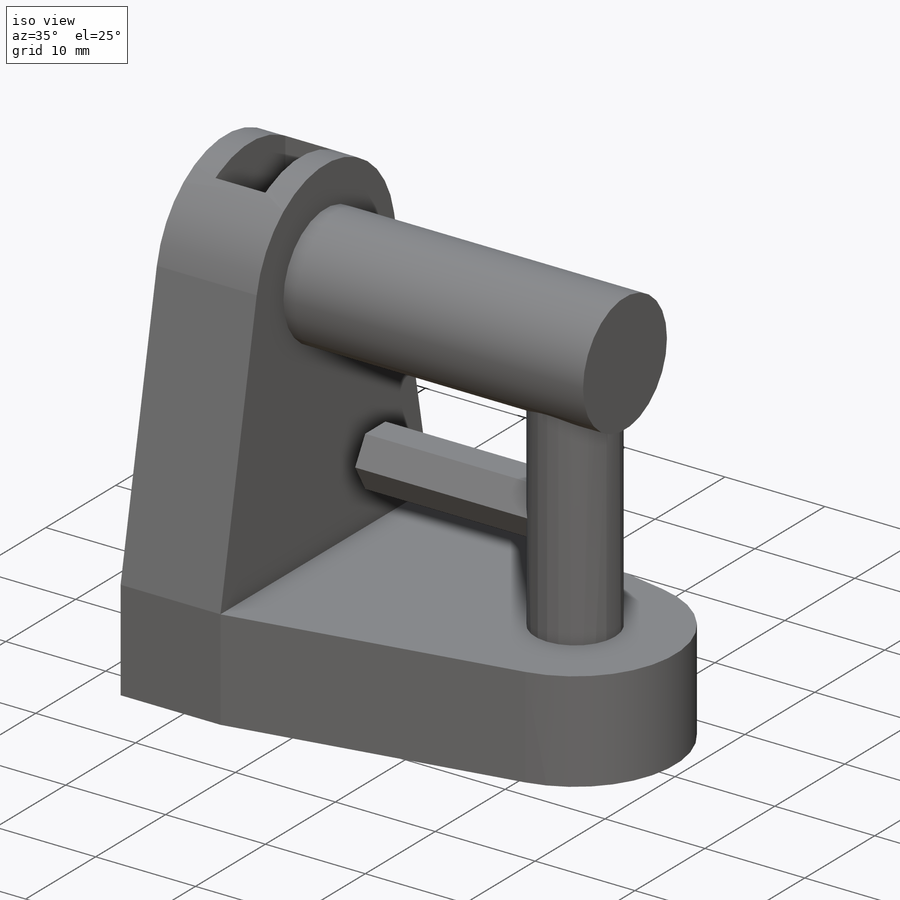
[diagram: iso view]
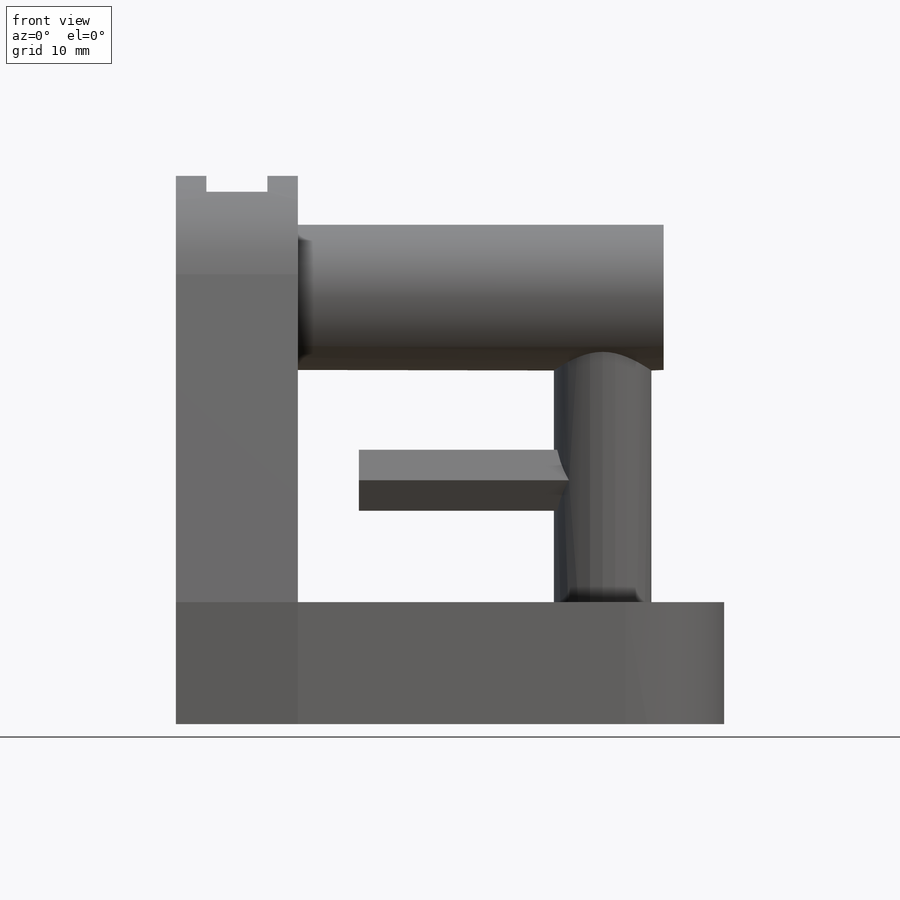
[diagram: front view]
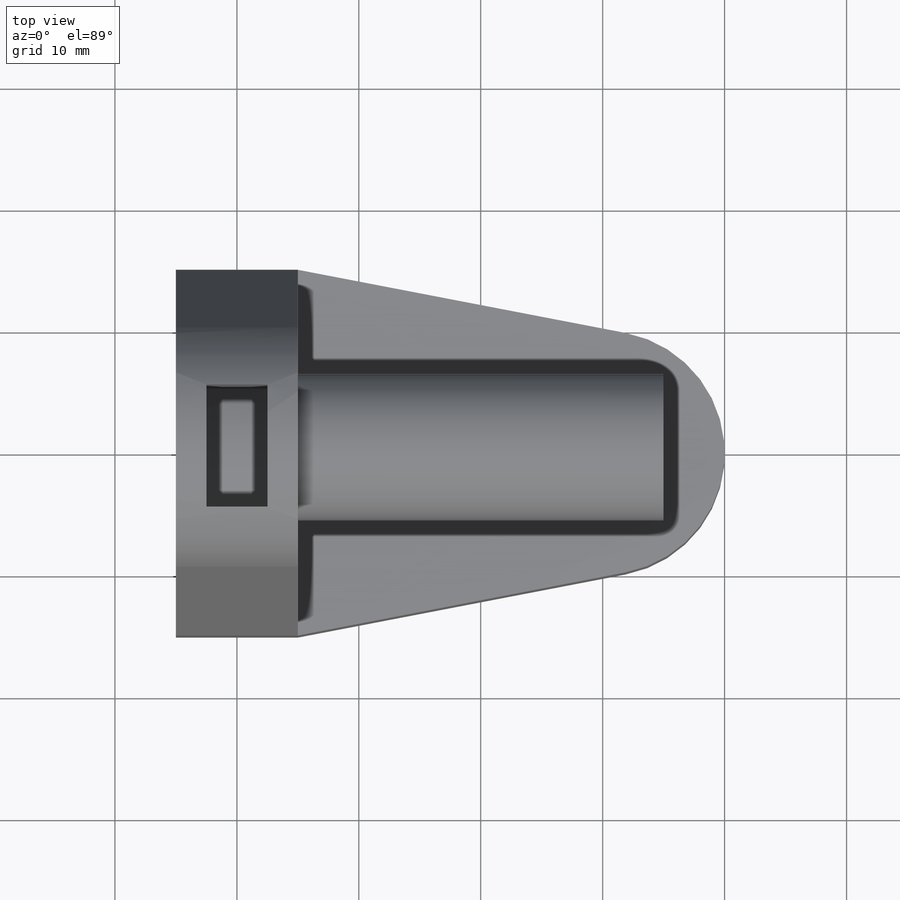
[diagram: top view]
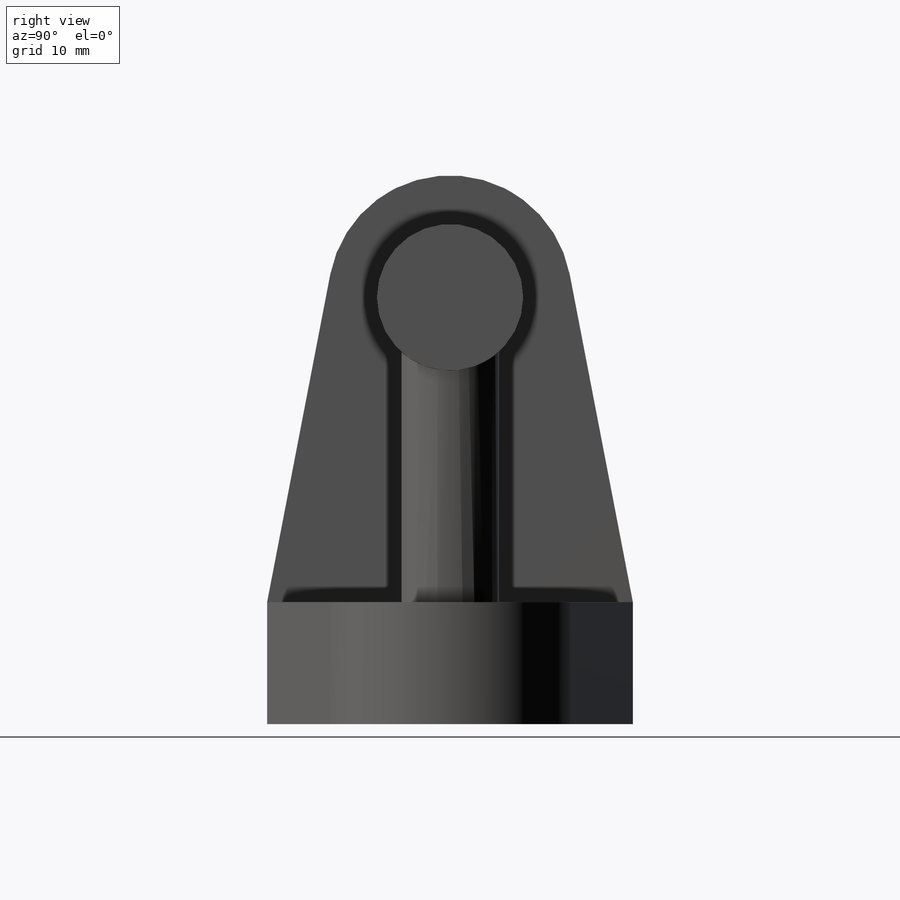
[diagram: right view]
SOLIDWORKS PART (.sldprt)
format: sldprt  version: not decoded by parser v0  size: 229,376 bytes
history: native  units: mm
features: sketch x7, extrude x5, cut_extrude x2, material x1 (+13 scaffold rows collapsed)
feature tree (28):
  scaffold x13  (default folders/planes/origin — collapsed)
  material  "Material <not specified>"
  sketch  "Sketch1"  dims[D4=10.0mm D1=10.0mm D2=30.0mm D3=45.0mm]
  extrude  "Boss-Extrude1"  Depth=10mm
  sketch  "Sketch2"  dims[D1=10.0mm D2=35.0mm]
  extrude  "Boss-Extrude2"  Depth=10mm
  sketch  "Sketch4"  dims[D1=12.0mm]
  extrude  "Boss-Extrude3"  Depth=30mm
  sketch  "Sketch5"  dims[D1=8.0mm]
  extrude  "Boss-Extrude4"  [1 undecoded]
  sketch  "Sketch6"  dims[c1.D1=20.0mm c1.D2=5.0mm c1.D3=30.0mm c2.D3=~179.615439deg]
  extrude  "Boss-Extrude5"  [1 undecoded]
  sketch  "Sketch7"
  cut_extrude  "Cut-Extrude1"  Depth=5mm
  sketch  "Sketch11"  dims[D1=10.0mm D2=5.0mm]
  cut_extrude  "Cut-Extrude2"  Depth=20mm
decode coverage: 11 of 14 modeling features carry decoded parameters
note: ~ marks probable driven/reference dimensions
note: 2 parameter values undecoded
note: suppression state not decoded; provenance and decode notes live in map.json
